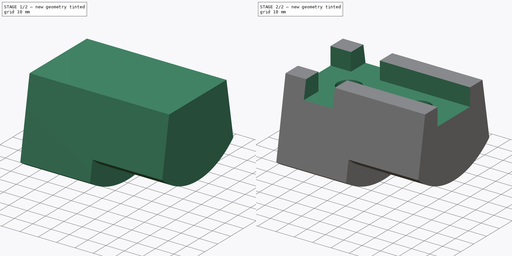
[diagram: build sequence overview — one tinted view per stage of 2, left to right]
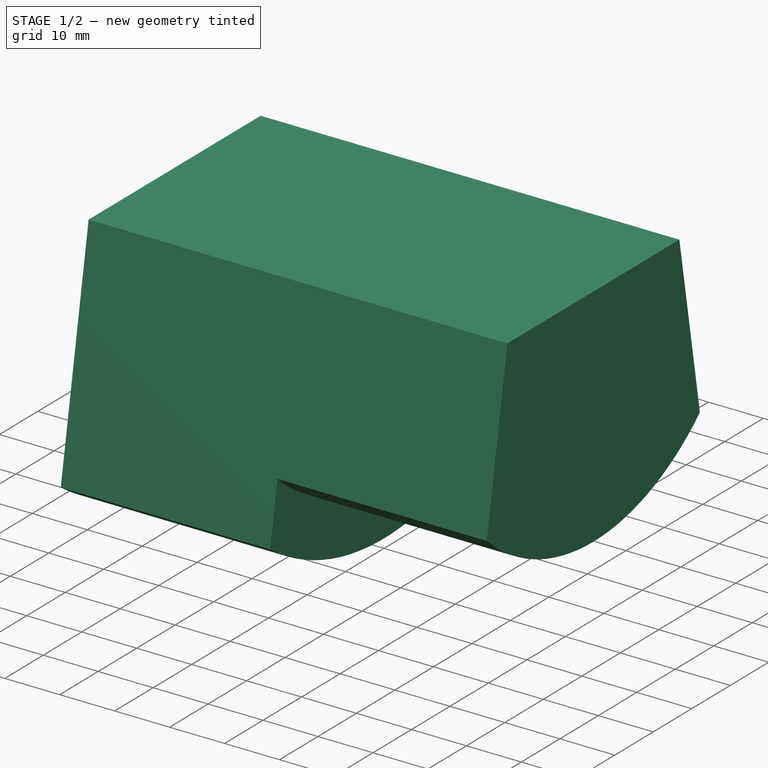
[diagram: stage 1 of 2 — iso view after this stage's code; geometry added in this stage tinted green]
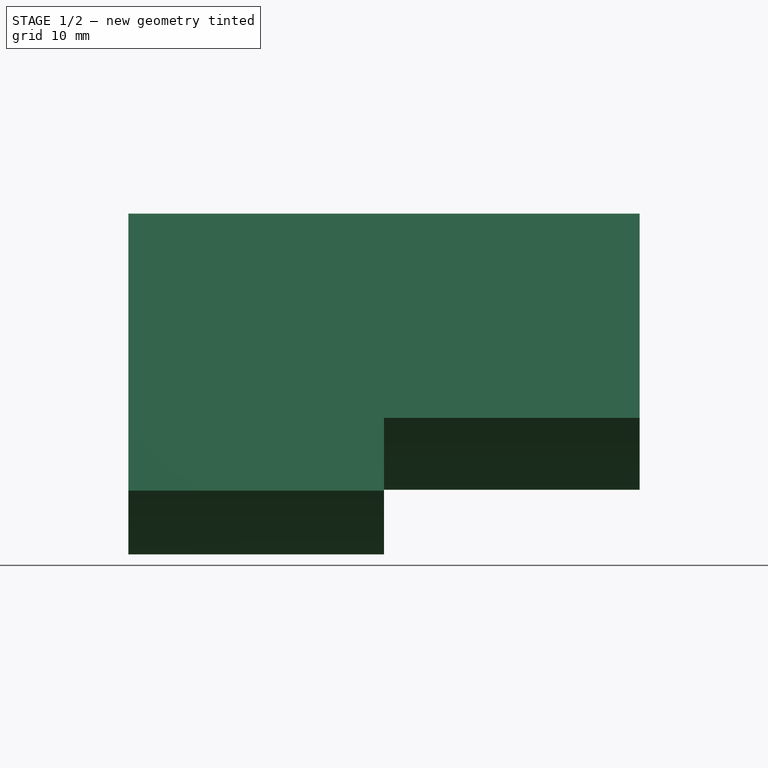
[diagram: stage 1 of 2 — front view after this stage's code; geometry added in this stage tinted green]
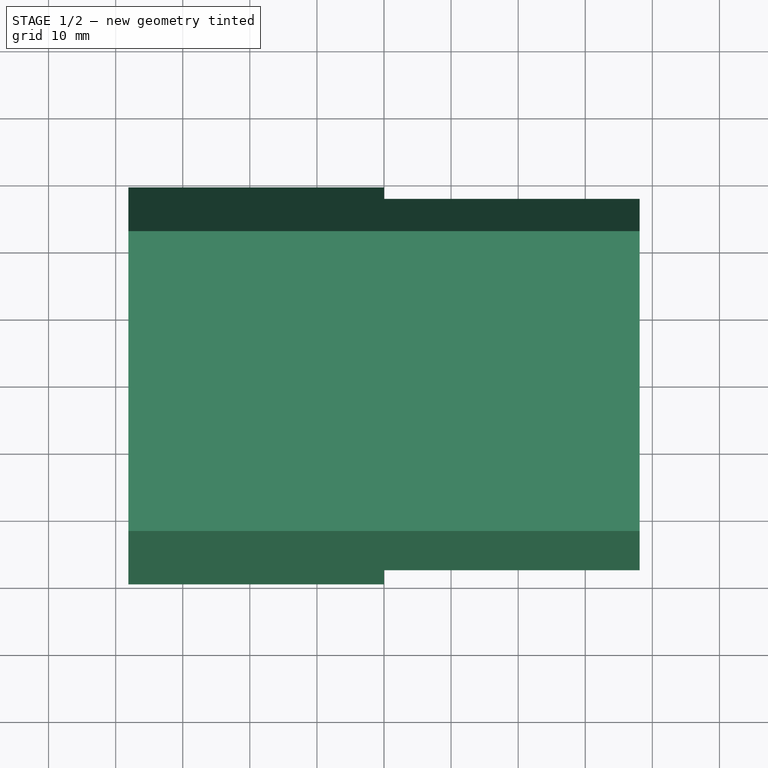
[diagram: stage 1 of 2 — top view after this stage's code; geometry added in this stage tinted green]
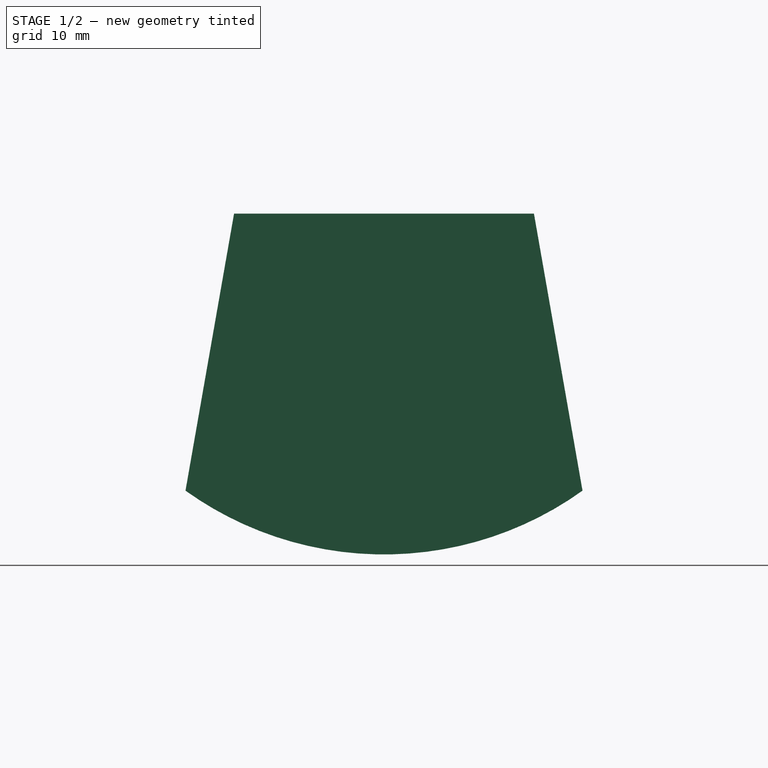
[diagram: stage 1 of 2 — right view after this stage's code; geometry added in this stage tinted green]
FCSTD DOCUMENT  (FreeCAD 0.17R9944 (Git))
Label: Beginner
License: All rights reserved
LicenseURL: http://en.wikipedia.org/wiki/All_rights_reserved
objects: Sketcher::SketchObject×4, PartDesign::Pocket×3, PartDesign::Pad×1, PartDesign::Body×1
note: 13 computed .brp shape members not serialized (recipe doc carries the construction recipe); baked Part::Feature solids carry a one-line shape summary decoded from their .brp

FEATURE [Sketcher::SketchObject] Sketch
  MapMode = 5
  Placement = pos=(0,0,0) rot=(0.57735,0.57735,0.57735;2.0944rad)
  Support = -> [YZ_Plane]
  sketch-geometry (4):
    g0: ArcOfCircle CenterX=0 CenterY=0 CenterZ=0 NormalX=0 NormalY=0 NormalZ=1 Radius=50.8 StartAngle=4.09059 EndAngle=5.33419
    g1: LineSegment StartX=-29.591 StartY=-41.2918 StartZ=0 EndX=-22.352 EndY=0 EndZ=0
    g2: LineSegment StartX=29.591 StartY=-41.2918 StartZ=0 EndX=22.352 EndY=0 EndZ=0
    g3: LineSegment StartX=22.352 StartY=0 StartZ=0 EndX=-22.352 EndY=0 EndZ=0
  constraints (12):
    c: Coincident(g0,g-1)
    c: Coincident(g1,g0)
    c: PointOnObject(g1,g-1)
    c: Coincident(g2,g0)
    c: PointOnObject(g2,g-1)
    c: Coincident(g3,g2)
    c: Coincident(g3,g1)
    c: Symmetric(g0,g0,g-2)
    c: DistanceX(g3,g3) = 44.704
    c: Symmetric(g2,g1,g-2)
    c: DistanceX(g0,g0) = 59.182
    c: Radius(g0) = 50.8
FEATURE [PartDesign::Pad] Pad
  Length = 76.2
  Length2 = 99.9998
  Midplane = true
  Placement = pos=(0,0,0) rot=(0.57735,0.57735,0.57735;2.0944rad)
  Profile = -> Sketch
  Reversed = true
  Type = 0
FEATURE [Sketcher::SketchObject] Sketch001
  MapMode = 5
  Placement = pos=(0,0,0) rot=(0.57735,0.57735,0.57735;2.0944rad)
  Support = -> [YZ_Plane]
  sketch-geometry (2):
    g0: Circle CenterX=0 CenterY=0 CenterZ=0 NormalX=0 NormalY=0 NormalZ=1 Radius=50.8
    g1: Circle CenterX=0 CenterY=0 CenterZ=0 NormalX=0 NormalY=0 NormalZ=1 Radius=41.148
  constraints (4):
    c: Coincident(g0,g-1)
    c: Coincident(g1,g-1)
    c: Radius(g0) = 50.8
    c: Radius(g1) = 41.148
FEATURE [PartDesign::Pocket] Pocket
  BaseFeature = -> Pad
  Length = 5.00126
  Placement = pos=(0,0,0) rot=(0.57735,0.57735,0.57735;2.0944rad)
  Profile = -> Sketch001
  Reversed = true
  Type = 1
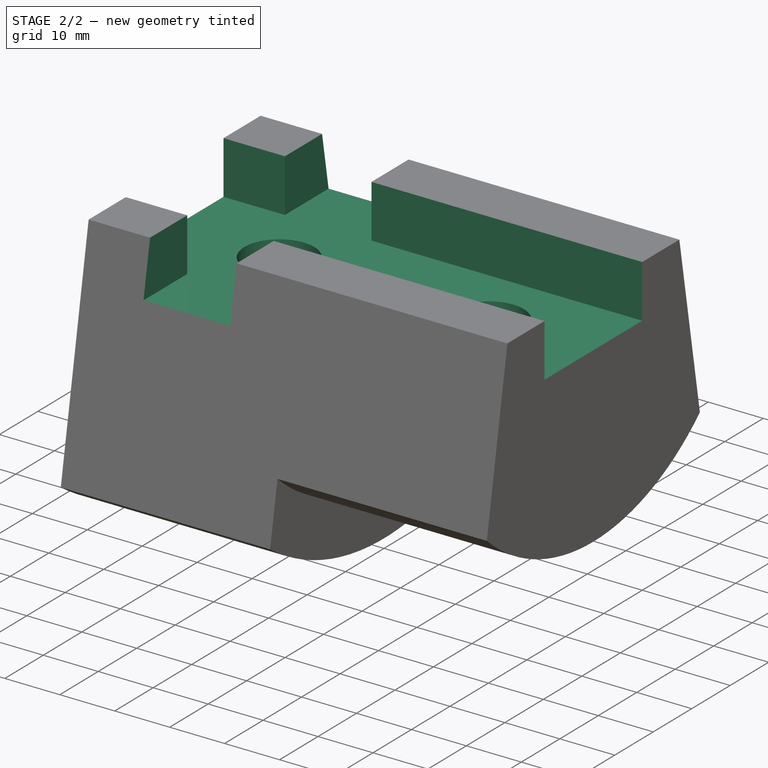
[diagram: stage 2 of 2 — iso view after this stage's code; geometry added in this stage tinted green]
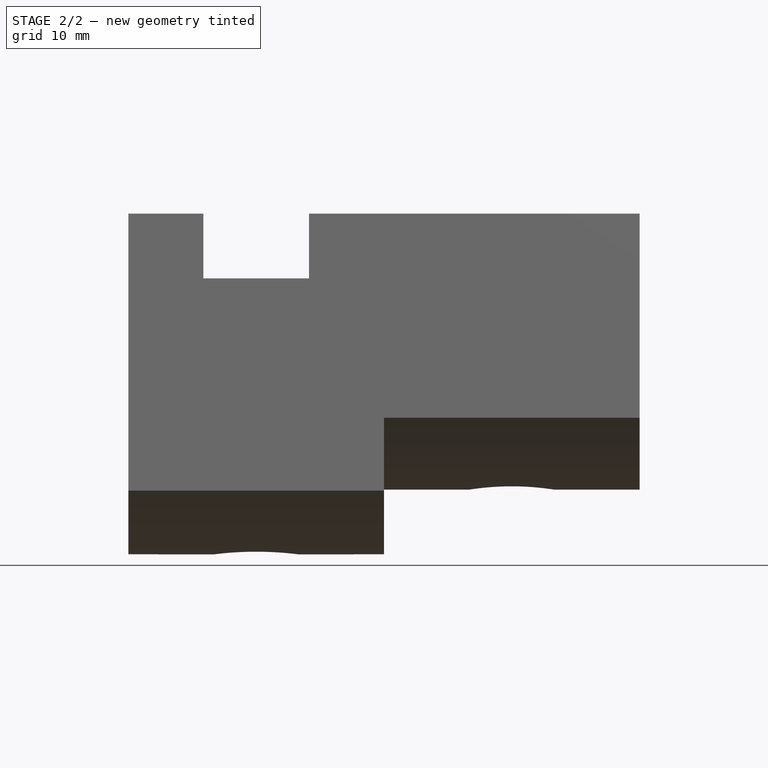
[diagram: stage 2 of 2 — front view after this stage's code; geometry added in this stage tinted green]
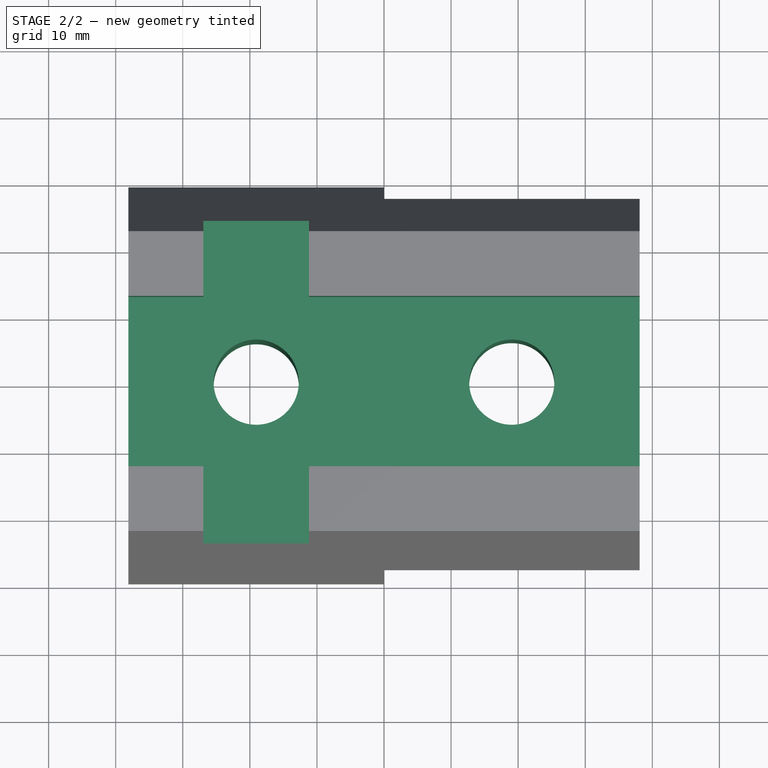
[diagram: stage 2 of 2 — top view after this stage's code; geometry added in this stage tinted green]
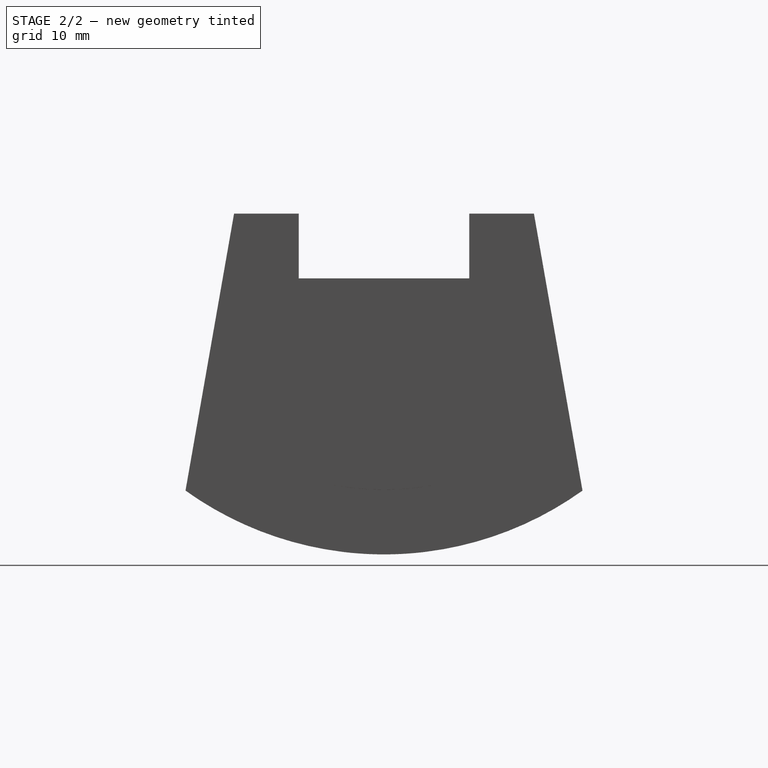
[diagram: stage 2 of 2 — right view after this stage's code; geometry added in this stage tinted green]
FEATURE [Sketcher::SketchObject] Sketch002
  MapMode = 5
  Support = -> [XY_Plane]
  sketch-geometry (2):
    g0: Circle CenterX=-19.05 CenterY=0 CenterZ=0 NormalX=0 NormalY=0 NormalZ=1 Radius=6.35
    g1: Circle CenterX=19.05 CenterY=0 CenterZ=0 NormalX=0 NormalY=0 NormalZ=1 Radius=6.35
  constraints (6):
    c: PointOnObject(g0,g-1)
    c: PointOnObject(g1,g-1)
    c: Equal(g0,g1)
    c: Radius(g0) = 6.35
    c: Symmetric(g1,g0,g-2)
    c: DistanceX(g1) = 19.05
FEATURE [PartDesign::Pocket] Pocket001
  BaseFeature = -> Pocket
  Length = 5.00126
  Placement = pos=(0,0,0) rot=(0.57735,0.57735,0.57735;2.0944rad)
  Profile = -> Sketch002
  Type = 1
FEATURE [Sketcher::SketchObject] Sketch003
  ExternalGeometry = -> [Pocket001]
  MapMode = 5
  Support = -> [XY_Plane]
  sketch-geometry (13):
    g0: LineSegment StartX=-26.924 StartY=31.75 StartZ=0 EndX=-11.176 EndY=31.75 EndZ=0
    g1: LineSegment StartX=-11.176 StartY=31.75 StartZ=0 EndX=-11.176 EndY=12.7 EndZ=0
    g2: LineSegment StartX=-11.176 StartY=-31.75 StartZ=0 EndX=-26.924 EndY=-31.75 EndZ=0
    g3: LineSegment StartX=-26.924 StartY=-31.75 StartZ=0 EndX=-26.924 EndY=-12.7 EndZ=0
    g4: LineSegment StartX=-38.1 StartY=-12.7 StartZ=0 EndX=-26.924 EndY=-12.7 EndZ=0
    g5: LineSegment StartX=38.1 StartY=-12.7 StartZ=0 EndX=38.1 EndY=12.7 EndZ=0
    g6: LineSegment StartX=38.1 StartY=12.7 StartZ=0 EndX=-11.176 EndY=12.7 EndZ=0
    g7: LineSegment StartX=-38.1 StartY=12.7 StartZ=0 EndX=-38.1 EndY=-12.7 EndZ=0
    g8: LineSegment [constr] StartX=-19.05 StartY=38.1 StartZ=0 EndX=-19.05 EndY=-38.1 EndZ=0
    g9: LineSegment StartX=-26.924 StartY=12.7 StartZ=0 EndX=-38.1 EndY=12.7 EndZ=0
    g10: LineSegment StartX=-26.924 StartY=12.7 StartZ=0 EndX=-26.924 EndY=31.75 EndZ=0
    g11: LineSegment StartX=-11.176 StartY=-12.7 StartZ=0 EndX=-11.176 EndY=-31.75 EndZ=0
    g12: LineSegment StartX=-11.176 StartY=-12.7 StartZ=0 EndX=38.1 EndY=-12.7 EndZ=0
  constraints (35):
    c: Coincident(g0,g1)
    c: Coincident(g11,g2)
    c: Coincident(g2,g3)
    c: Coincident(g10,g0)
    c: Horizontal(g0)
    c: Horizontal(g2)
    c: Vertical(g1)
    c: Vertical(g3)
    c: Coincident(g12,g5)
    c: Coincident(g5,g6)
    c: Coincident(g9,g7)
    c: Coincident(g7,g4)
    c: Horizontal(g4)
    c: Horizontal(g6)
    c: Vertical(g5)
    c: Vertical(g7)
    c: Symmetric(g11,g0,g-1)
    c: Symmetric(g9,g5,g-2)
    c: Symmetric(g4,g9,g-1)
    c: DistanceX(g9,g5) = 76.2
    c: DistanceY(g2,g0) = 63.5
    c: PointOnObject(g-3,g8)
    c: Symmetric(g8,g8,g-1)
    c: DistanceY(g8,g8) = 76.2
    c: Symmetric(g0,g0,g8)
    c: DistanceX(g0,g0) = 15.748
    c: DistanceY(g5,g5) = 25.4
    c: Tangent(g6,g9)
    c: Coincident(g10,g9)
    c: Tangent(g3,g10)
    c: Tangent(g1,g11)
    c: Coincident(g6,g1)
    c: Coincident(g12,g11)
    c: Tangent(g4,g12)
    c: Coincident(g4,g3)
FEATURE [PartDesign::Pocket] Pocket002
  BaseFeature = -> Pocket001
  Length = 9.652
  Placement = pos=(0,0,0) rot=(0.57735,0.57735,0.57735;2.0944rad)
  Profile = -> Sketch003
  Type = 0
FEATURE [PartDesign::Body] Body
  Group = -> [Sketch,Pad,Sketch001,Pocket,Sketch002,Pocket001,Sketch003,Pocket002]
  Origin = -> BodyOrigin
  Tip = -> Pocket002
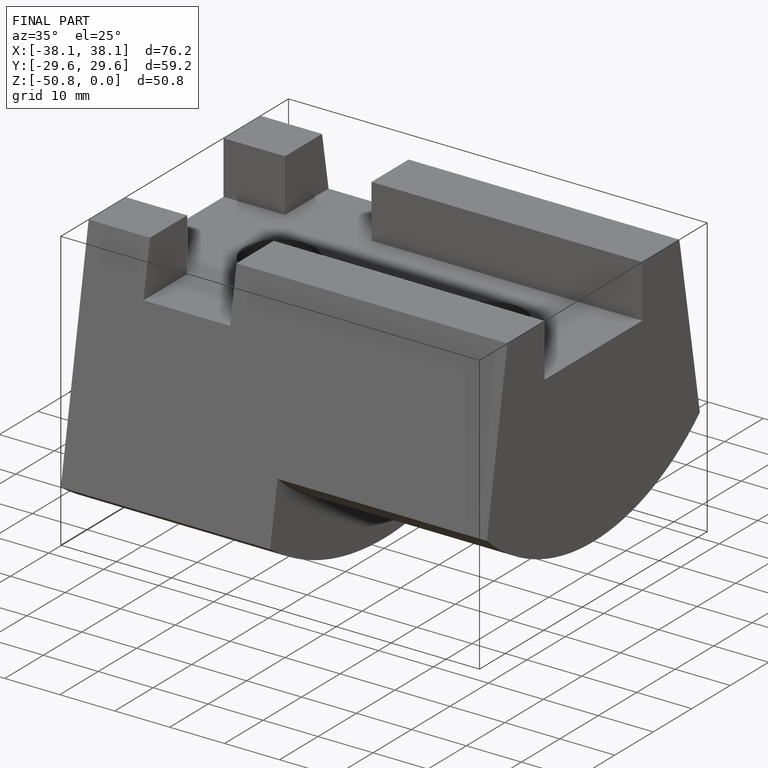
[diagram: finished part — iso view with bounding-box wireframe]
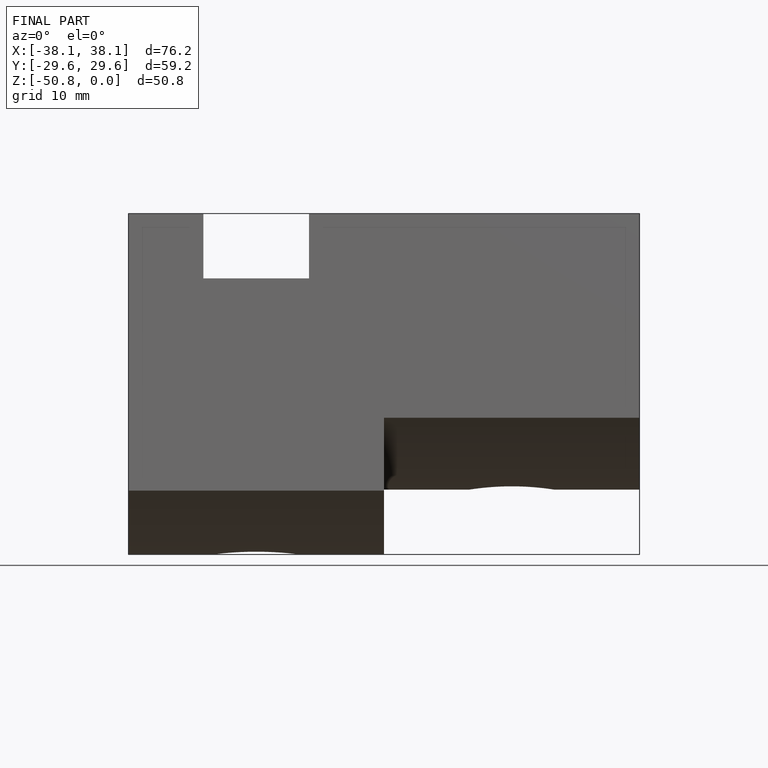
[diagram: finished part — front view with bounding-box wireframe]
